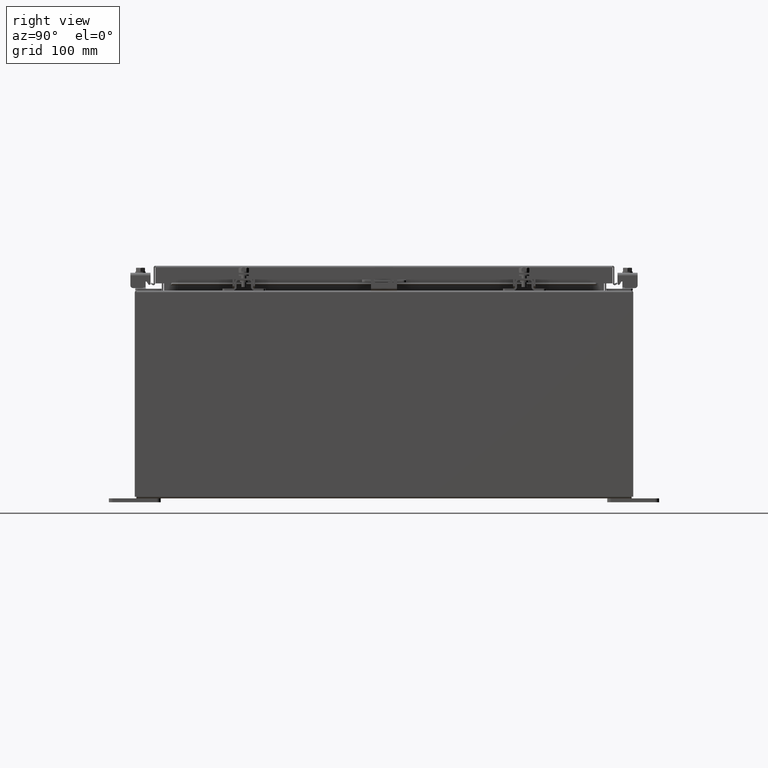
[diagram: clean part render]
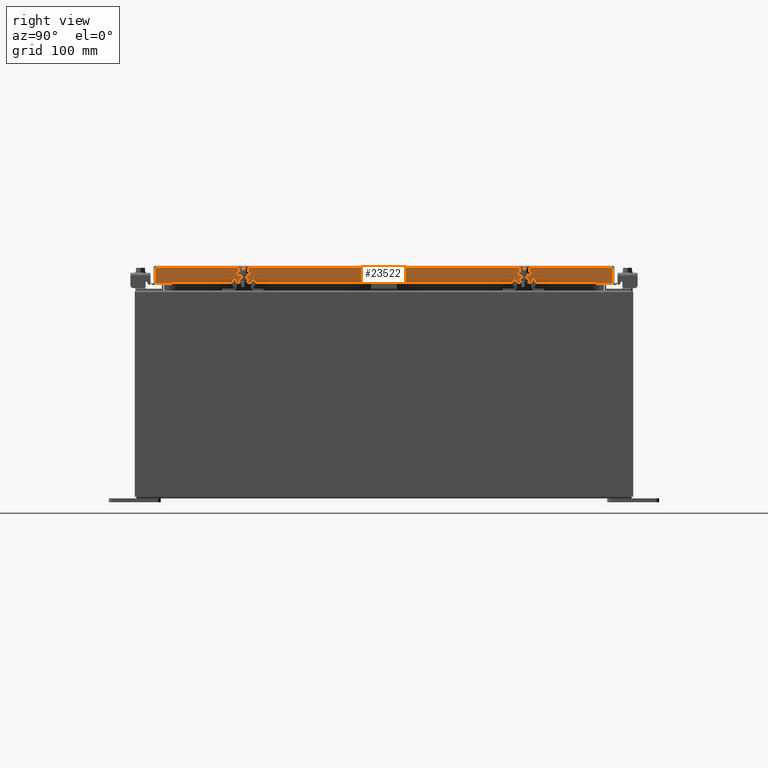
[diagram: same view with one face highlighted and labeled with its STEP entity id]
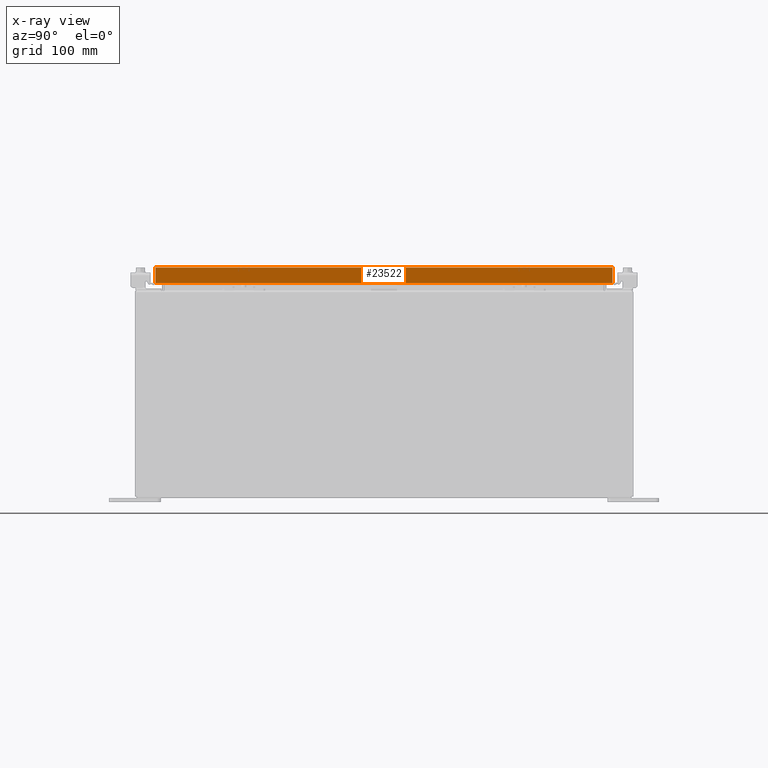
[diagram: x-ray of the same camera — body ghosted, the highlighted face saturated]
A machine part, right view. The second image highlights one B-rep face of the part: STEP entity #23522.
The next image is the same camera in x-ray: the body ghosted, the highlighted face saturated — about 0% of this face is hidden behind the body in this view.
In plain terms, the highlighted planar face has unit normal (1, 0, 0).
Its self-contained STEP definition (entity closure, byte-faithful):
#128 = EDGE_LOOP ( 'NONE', ( #15939, #27750, #13965, #16806, #4709, #28294 ) ) ;
#1870 = VERTEX_POINT ( 'NONE', #30256 ) ;
#2356 = CARTESIAN_POINT ( 'NONE',  ( 9.077999999999994100, 10.25515786437627200, -0.8500000000000010900 ) ) ;
#2595 = CARTESIAN_POINT ( 'NONE',  ( 9.077999999999999400, 11.00515786437627100, -0.08770000000000007000 ) ) ;
#2930 = DIRECTION ( 'NONE',  ( 0.0000000000000000000, -1.000000000000000000, 0.0000000000000000000 ) ) ;
#4013 = VECTOR ( 'NONE', #2930, 39.37007874015748100 ) ;
#4022 = VERTEX_POINT ( 'NONE', #2595 ) ;
#4709 = ORIENTED_EDGE ( 'NONE', *, *, #23959, .T. ) ;
#4731 = CARTESIAN_POINT ( 'NONE',  ( 9.077999999999999400, -11.00515786437626900, -0.07469999999999978000 ) ) ;
#4872 = LINE ( 'NONE', #11856, #17383 ) ;
#4954 = EDGE_CURVE ( 'NONE', #15650, #16987, #18819, .T. ) ;
#5560 = VERTEX_POINT ( 'NONE', #24154 ) ;
#8413 = CARTESIAN_POINT ( 'NONE',  ( 9.077999999999994100, -10.25515786437626400, -0.8500000000000010900 ) ) ;
#8727 = DIRECTION ( 'NONE',  ( 0.0000000000000000000, -1.000000000000000000, 0.0000000000000000000 ) ) ;
#8907 = DIRECTION ( 'NONE',  ( 2.818880942772360100E-015, 0.0000000000000000000, -1.000000000000000000 ) ) ;
#10443 = CARTESIAN_POINT ( 'NONE',  ( 9.077999999999994100, 10.25515786437627200, -0.8500000000000010900 ) ) ;
#10650 = DIRECTION ( 'NONE',  ( 0.0000000000000000000, -1.000000000000000000, 0.0000000000000000000 ) ) ;
#11206 = EDGE_CURVE ( 'NONE', #1870, #5560, #19415, .T. ) ;
#11856 = CARTESIAN_POINT ( 'NONE',  ( 9.077999999999999400, 0.0000000000000000000, -0.08770000000000007000 ) ) ;
#12144 = VECTOR ( 'NONE', #8727, 39.37007874015748100 ) ;
#12507 = EDGE_CURVE ( 'NONE', #4022, #5560, #4872, .T. ) ;
#13965 = ORIENTED_EDGE ( 'NONE', *, *, #16517, .F. ) ;
#15559 = VERTEX_POINT ( 'NONE', #8413 ) ;
#15650 = VERTEX_POINT ( 'NONE', #18733 ) ;
#15939 = ORIENTED_EDGE ( 'NONE', *, *, #11206, .F. ) ;
#16302 = LINE ( 'NONE', #18010, #28876 ) ;
#16350 = PLANE ( 'NONE',  #22656 ) ;
#16517 = EDGE_CURVE ( 'NONE', #16987, #15559, #29080, .T. ) ;
#16806 = ORIENTED_EDGE ( 'NONE', *, *, #4954, .F. ) ;
#16987 = VERTEX_POINT ( 'NONE', #2356 ) ;
#17130 = LINE ( 'NONE', #25674, #22983 ) ;
#17383 = VECTOR ( 'NONE', #26853, 39.37007874015748100 ) ;
#17857 = VECTOR ( 'NONE', #24727, 39.37007874015748100 ) ;
#18010 = CARTESIAN_POINT ( 'NONE',  ( 9.077999999999999400, 11.00515786437626900, 1.026992214834840500E-013 ) ) ;
#18733 = CARTESIAN_POINT ( 'NONE',  ( 9.078000000000001200, 11.00515786437627400, -0.8499999999999996400 ) ) ;
#18819 = LINE ( 'NONE', #26275, #12144 ) ;
#19415 = LINE ( 'NONE', #4731, #17857 ) ;
#22656 = AXIS2_PLACEMENT_3D ( 'NONE', #26330, #23902, #8907 ) ;
#22983 = VECTOR ( 'NONE', #10650, 39.37007874015748100 ) ;
#23522 = ADVANCED_FACE ( 'NONE', ( #28129 ), #16350, .T. ) ;
#23902 = DIRECTION ( 'NONE',  ( 1.000000000000000000, 0.0000000000000000000, 2.818880942772360100E-015 ) ) ;
#23959 = EDGE_CURVE ( 'NONE', #15650, #4022, #16302, .T. ) ;
#24154 = CARTESIAN_POINT ( 'NONE',  ( 9.077999999999999400, -11.00515786437626900, -0.08770000000000007000 ) ) ;
#24727 = DIRECTION ( 'NONE',  ( -2.818880942772360100E-015, -6.982962677686267500E-015, 1.000000000000000000 ) ) ;
#25650 = DIRECTION ( 'NONE',  ( -2.818880942772360100E-015, -6.982962677686267500E-015, 1.000000000000000000 ) ) ;
#25674 = CARTESIAN_POINT ( 'NONE',  ( 9.078000000000001200, -11.09399999999999900, -0.8499999999999996400 ) ) ;
#26275 = CARTESIAN_POINT ( 'NONE',  ( 9.078000000000001200, -11.09399999999999900, -0.8499999999999996400 ) ) ;
#26330 = CARTESIAN_POINT ( 'NONE',  ( 9.077999999999999400, 0.0000000000000000000, 2.585061485449906600E-014 ) ) ;
#26853 = DIRECTION ( 'NONE',  ( 0.0000000000000000000, -1.000000000000000000, 0.0000000000000000000 ) ) ;
#27750 = ORIENTED_EDGE ( 'NONE', *, *, #29324, .F. ) ;
#28129 = FACE_OUTER_BOUND ( 'NONE', #128, .T. ) ;
#28294 = ORIENTED_EDGE ( 'NONE', *, *, #12507, .T. ) ;
#28876 = VECTOR ( 'NONE', #25650, 39.37007874015748100 ) ;
#29080 = LINE ( 'NONE', #10443, #4013 ) ;
#29324 = EDGE_CURVE ( 'NONE', #15559, #1870, #17130, .T. ) ;
#30256 = CARTESIAN_POINT ( 'NONE',  ( 9.078000000000001200, -11.00515786437626400, -0.8499999999999996400 ) ) ;